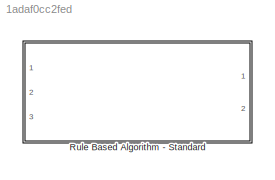
MODEL slx_1adaf0cc2fed
KIND model
CONFIG AbsTol = auto
CONFIG EnableMultiTasking = off
CONFIG FixedStep = t_step
CONFIG MaxStep = auto
CONFIG MinStep = auto
CONFIG RelTol = 1e-3
CONFIG SampleTimeConstraint = Unconstrained
CONFIG Solver = ode2
CONFIG SolverName = ode2
CONFIG StartTime = 0.0
CONFIG StopTime = inf
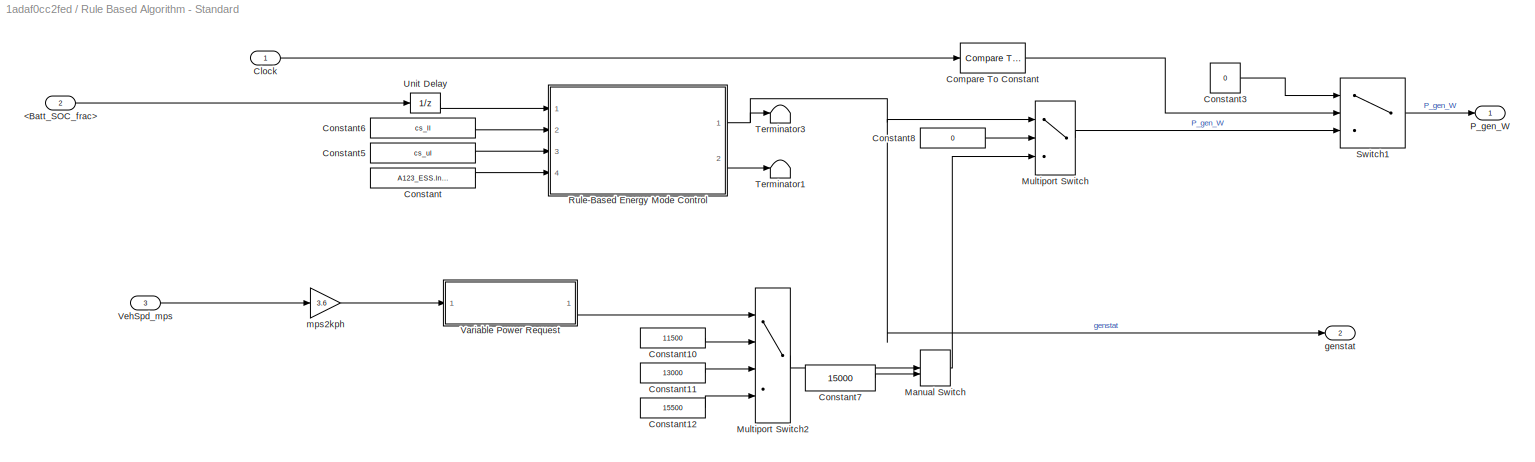
BLOCK [SubSystem] Rule Based Algorithm - Standard
  Ports = [3, 2]
  RequestExecContextInheritance = off
BLOCK [Inport] Rule Based Algorithm - Standard/<Batt_SOC_frac>
  IconDisplay = Port number
  Port = 2
BLOCK [Inport] Rule Based Algorithm - Standard/Clock
  IconDisplay = Port number
BLOCK [Reference] Rule Based Algorithm - Standard/Compare To Constant  REF=simulink/Logic and Bit
Operations/Compare
To Constant
  Ports = [1, 1]
  SourceBlock = simulink/Logic and Bit\nOperations/Compare\nTo Constant
  SourceProductBaseCode = SL
  SourceProductName = Simulink
  SourceType = Compare To Constant
BLOCK [Constant] Rule Based Algorithm - Standard/Constant
  Value = A123_ESS.Init_soc
BLOCK [Constant] Rule Based Algorithm - Standard/Constant10
  Value = 11500
BLOCK [Constant] Rule Based Algorithm - Standard/Constant11
  Value = 13000
BLOCK [Constant] Rule Based Algorithm - Standard/Constant12
  Value = 15500
BLOCK [Constant] Rule Based Algorithm - Standard/Constant3
  Value = 0
BLOCK [Constant] Rule Based Algorithm - Standard/Constant5
  Value = cs_ul
BLOCK [Constant] Rule Based Algorithm - Standard/Constant6
  Value = cs_ll
BLOCK [Constant] Rule Based Algorithm - Standard/Constant7
  Value = 15000
BLOCK [Constant] Rule Based Algorithm - Standard/Constant8
  Value = 0
BLOCK [ManualSwitch] Rule Based Algorithm - Standard/Manual Switch
  CurrentSetting = 0
BLOCK [MultiPortSwitch] Rule Based Algorithm - Standard/Multiport Switch
  DataPortOrder = Zero-based contiguous
  InputSameDT = off
  Inputs = 2
  Ports = [3, 1]
  SaturateOnIntegerOverflow = off
  zeroidx = on
BLOCK [MultiPortSwitch] Rule Based Algorithm - Standard/Multiport Switch2
  DataPortOrder = Zero-based contiguous
  InputSameDT = off
  Ports = [4, 1]
  SaturateOnIntegerOverflow = off
  zeroidx = on
BLOCK [Outport] Rule Based Algorithm - Standard/P_gen_W
  IconDisplay = Port number
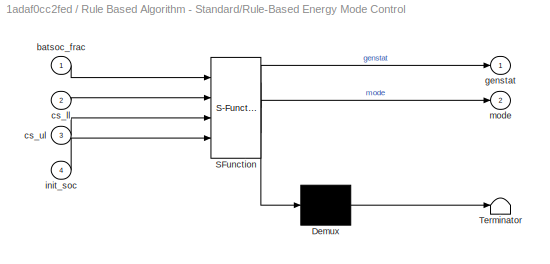
BLOCK [SubSystem] Rule Based Algorithm - Standard/Rule-Based Energy Mode Control
  ErrorFcn = Stateflow.Translate.translate
  PermitHierarchicalResolution = ExplicitOnly
  Ports = [4, 2]
  RequestExecContextInheritance = off
  SFBlockType = Chart
  TreatAsAtomicUnit = on
BLOCK [Demux] Rule Based Algorithm - Standard/Rule-Based Energy Mode Control/ Demux 
  Outputs = 1
  Ports = [1, 1]
BLOCK [S-Function] Rule Based Algorithm - Standard/Rule-Based Energy Mode Control/ SFunction 
  EnableBusSupport = on
  FunctionName = sf_sfun
  PortCounts = [4 3]
  Ports = [4, 3]
  SFcnIsStateOwnerBlock = off
  SFunctionDeploymentMode = off
  Tag = Stateflow S-Function RuleBasedAlgo_sfunc_model 6
BLOCK [Terminator] Rule Based Algorithm - Standard/Rule-Based Energy Mode Control/ Terminator 
BLOCK [Inport] Rule Based Algorithm - Standard/Rule-Based Energy Mode Control/batsoc_frac
  IconDisplay = Port number
BLOCK [Inport] Rule Based Algorithm - Standard/Rule-Based Energy Mode Control/cs_ll
  IconDisplay = Port number
  Port = 2
BLOCK [Inport] Rule Based Algorithm - Standard/Rule-Based Energy Mode Control/cs_ul
  IconDisplay = Port number
  Port = 3
BLOCK [Outport] Rule Based Algorithm - Standard/Rule-Based Energy Mode Control/genstat
  IconDisplay = Port number
BLOCK [Inport] Rule Based Algorithm - Standard/Rule-Based Energy Mode Control/init_soc
  IconDisplay = Port number
  Port = 4
BLOCK [Outport] Rule Based Algorithm - Standard/Rule-Based Energy Mode Control/mode
  IconDisplay = Port number
  Port = 2
BLOCK [Switch] Rule Based Algorithm - Standard/Switch1
  Criteria = u2 > Threshold
  InputSameDT = off
  SaturateOnIntegerOverflow = off
BLOCK [Terminator] Rule Based Algorithm - Standard/Terminator1
BLOCK [Terminator] Rule Based Algorithm - Standard/Terminator3
BLOCK [UnitDelay] Rule Based Algorithm - Standard/Unit Delay
  InputProcessing = Elements as channels (sample based)
  SampleTime = -1
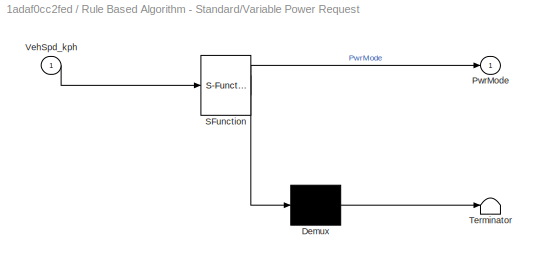
BLOCK [SubSystem] Rule Based Algorithm - Standard/Variable Power Request
  ErrorFcn = Stateflow.Translate.translate
  PermitHierarchicalResolution = ExplicitOnly
  Ports = [1, 1]
  RequestExecContextInheritance = off
  SFBlockType = MATLAB Function
  TreatAsAtomicUnit = on
BLOCK [Demux] Rule Based Algorithm - Standard/Variable Power Request/ Demux 
  Outputs = 1
  Ports = [1, 1]
BLOCK [S-Function] Rule Based Algorithm - Standard/Variable Power Request/ SFunction 
  EnableBusSupport = on
  FunctionName = sf_sfun
  PortCounts = [1 2]
  Ports = [1, 2]
  SFcnIsStateOwnerBlock = off
  SFunctionDeploymentMode = off
  Tag = Stateflow S-Function RuleBasedAlgo_sfunc_model 7
BLOCK [Terminator] Rule Based Algorithm - Standard/Variable Power Request/ Terminator 
BLOCK [Outport] Rule Based Algorithm - Standard/Variable Power Request/PwrMode
  IconDisplay = Port number
BLOCK [Inport] Rule Based Algorithm - Standard/Variable Power Request/VehSpd_kph
  IconDisplay = Port number
BLOCK [Inport] Rule Based Algorithm - Standard/VehSpd_mps
  IconDisplay = Port number
  Port = 3
BLOCK [Outport] Rule Based Algorithm - Standard/genstat
  IconDisplay = Port number
  Port = 2
BLOCK [Gain] Rule Based Algorithm - Standard/mps2kph
  Gain = 3.6
  OutDataTypeStr = Inherit: Inherit via internal rule
  ParamDataTypeStr = Inherit: Inherit via internal rule
  SaturateOnIntegerOverflow = off
LINE Rule Based Algorithm - Standard/<Batt_SOC_frac>:1 -> Rule Based Algorithm - Standard/Unit Delay:1
LINE Rule Based Algorithm - Standard/Clock:1 -> Rule Based Algorithm - Standard/Compare To Constant:1
LINE Rule Based Algorithm - Standard/Compare To Constant:1 -> Rule Based Algorithm - Standard/Switch1:2
LINE Rule Based Algorithm - Standard/Constant10:1 -> Rule Based Algorithm - Standard/Multiport Switch2:2
LINE Rule Based Algorithm - Standard/Constant11:1 -> Rule Based Algorithm - Standard/Multiport Switch2:3
LINE Rule Based Algorithm - Standard/Constant12:1 -> Rule Based Algorithm - Standard/Multiport Switch2:4
LINE Rule Based Algorithm - Standard/Constant3:1 -> Rule Based Algorithm - Standard/Switch1:1
LINE Rule Based Algorithm - Standard/Constant5:1 -> Rule Based Algorithm - Standard/Rule-Based Energy Mode Control:3
LINE Rule Based Algorithm - Standard/Constant6:1 -> Rule Based Algorithm - Standard/Rule-Based Energy Mode Control:2
LINE Rule Based Algorithm - Standard/Constant7:1 -> Rule Based Algorithm - Standard/Manual Switch:2
LINE Rule Based Algorithm - Standard/Constant8:1 -> Rule Based Algorithm - Standard/Multiport Switch:2
LINE Rule Based Algorithm - Standard/Constant:1 -> Rule Based Algorithm - Standard/Rule-Based Energy Mode Control:4
LINE Rule Based Algorithm - Standard/Manual Switch:1 -> Rule Based Algorithm - Standard/Multiport Switch:3
LINE Rule Based Algorithm - Standard/Multiport Switch2:1 -> Rule Based Algorithm - Standard/Manual Switch:1
LINE Rule Based Algorithm - Standard/Multiport Switch:1 -> Rule Based Algorithm - Standard/Switch1:3
NET Rule Based Algorithm - Standard/Rule-Based Energy Mode Control:1 -> Rule Based Algorithm - Standard/Multiport Switch:1, Rule Based Algorithm - Standard/Terminator3:1, Rule Based Algorithm - Standard/genstat:1
LINE Rule Based Algorithm - Standard/Rule-Based Energy Mode Control:2 -> Rule Based Algorithm - Standard/Terminator1:1
LINE Rule Based Algorithm - Standard/Switch1:1 -> Rule Based Algorithm - Standard/P_gen_W:1
LINE Rule Based Algorithm - Standard/Unit Delay:1 -> Rule Based Algorithm - Standard/Rule-Based Energy Mode Control:1
LINE Rule Based Algorithm - Standard/Variable Power Request:1 -> Rule Based Algorithm - Standard/Multiport Switch2:1
LINE Rule Based Algorithm - Standard/VehSpd_mps:1 -> Rule Based Algorithm - Standard/mps2kph:1
LINE Rule Based Algorithm - Standard/mps2kph:1 -> Rule Based Algorithm - Standard/Variable Power Request:1
note: NET lines group one-source signal fan-out (src -> all destinations, sorted); 1:1 wires keep LINE
CHART Rule Based Algorithm - Standard/Rule-Based
Energy Mode
Control states=4 transitions=8
  STATE_LABEL 'Initialization'
  STATE_LABEL 'CDMode\ndu:\nmode = 0;\ngenstat = 0;'
  STATE_LABEL 'CSModeGen\ndu:\nmode = 1;\ngenstat = 1;'
  STATE_LABEL 'CSModeNoGen\ndu:\nmode = 1;\ngenstat = 0;'
CHART Rule Based Algorithm - Standard/Variable Power Request states=1 transitions=1
  STATE_LABEL 'eML_blk_kernel()'
  STATE_LABEL 'SCRIPT:\nfunction PwrMode = VarPwrReq(VehSpd_kph)\n    if VehSpd_kph >= 0 && VehSpd_kph < 48\n        PwrMode = 0;\n    elseif VehSpd_kph >= 48 && VehSpd_kph < 97\n        PwrMode = 1;\n    else\n        PwrMode = 2;\n    end\nend\n'
